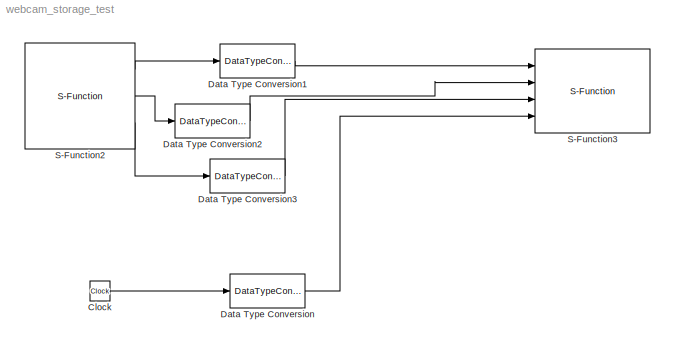
MODEL webcam_storage_test
KIND model
BLOCK [Clock] Clock
  Decimation = 10
BLOCK [DataTypeConversion] Data Type Conversion
  OutDataType = fixdt(1, 16)
  OutDataTypeMode = uint16
  OutDataTypeStr = uint16
  OutScaling = 2^0
  RndMeth = Floor
  SaturateOnIntegerOverflow = off
BLOCK [DataTypeConversion] Data Type Conversion1
  OutDataType = fixdt(1, 16)
  OutDataTypeMode = uint8
  OutDataTypeStr = uint8
  OutScaling = 2^0
  RndMeth = Floor
  SaturateOnIntegerOverflow = off
BLOCK [DataTypeConversion] Data Type Conversion2
  OutDataType = fixdt(1, 16)
  OutDataTypeMode = uint8
  OutDataTypeStr = uint8
  OutScaling = 2^0
  RndMeth = Floor
  SaturateOnIntegerOverflow = off
BLOCK [DataTypeConversion] Data Type Conversion3
  OutDataType = fixdt(1, 16)
  OutDataTypeMode = uint8
  OutDataTypeStr = uint8
  OutScaling = 2^0
  RndMeth = Floor
  SaturateOnIntegerOverflow = off
BLOCK [S-Function] S-Function2
  EnableBusSupport = off
  FunctionName = WebcamTest
  Ports = [0, 3]
BLOCK [S-Function] S-Function3
  EnableBusSupport = off
  FunctionName = VideoStorage2
  Ports = [4]
LINE Clock:1 -> Data Type Conversion:1
LINE Data Type Conversion1:1 -> S-Function3:1
LINE Data Type Conversion2:1 -> S-Function3:2
LINE Data Type Conversion3:1 -> S-Function3:3
LINE Data Type Conversion:1 -> S-Function3:4
LINE S-Function2:1 -> Data Type Conversion1:1
LINE S-Function2:2 -> Data Type Conversion2:1
LINE S-Function2:3 -> Data Type Conversion3:1
